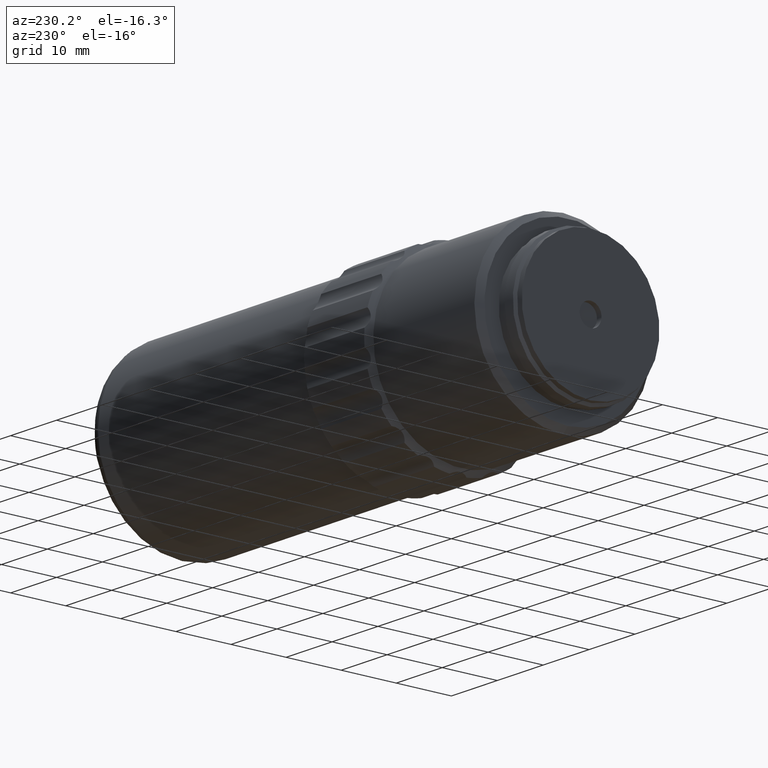
[diagram: clean part render]
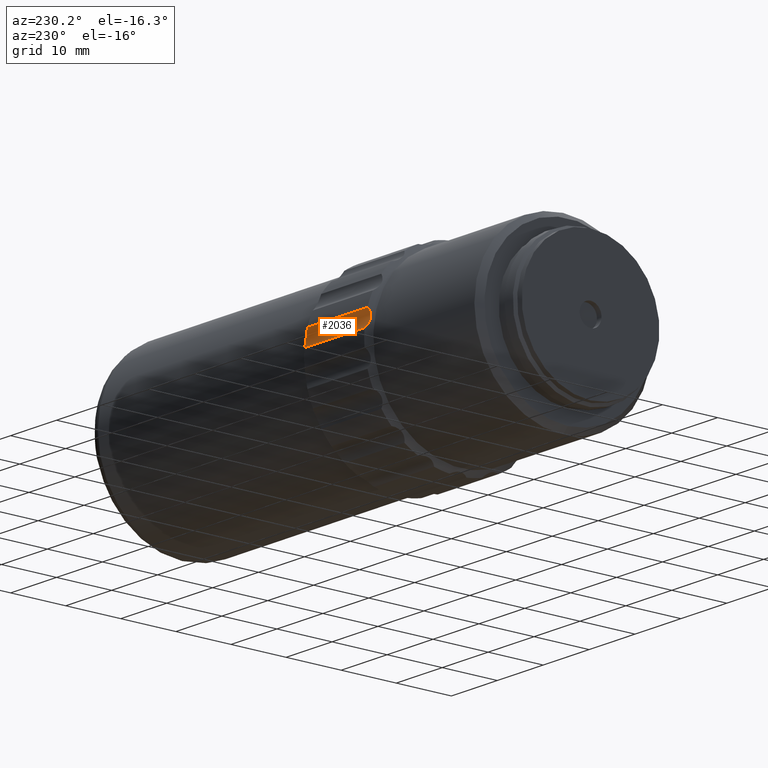
[diagram: same view with one face highlighted and labeled with its STEP entity id]
A machine part, auxiliary view. The second image highlights one B-rep face of the part: STEP entity #2036.
In plain terms, the highlighted cylindrical surface (edge-blend (fillet) strip) has radius 3 mm, axis along (-1, 0, 0).
Its self-contained STEP definition (entity closure, byte-faithful):
#52 = EDGE_CURVE ( 'NONE', #1191, #382, #1551, .T. ) ;
#90 = CARTESIAN_POINT ( 'NONE',  ( 32.85210940846929617, 62.47151406203238366, 2.186719745017569494 ) ) ;
#102 = CARTESIAN_POINT ( 'NONE',  ( 18.85967090375870825, 62.23047274774310722, 3.153385542406657915 ) ) ;
#127 = CARTESIAN_POINT ( 'NONE',  ( 19.34685803487881017, 62.96184413496550292, 1.416514203673278960 ) ) ;
#131 = CARTESIAN_POINT ( 'NONE',  ( 19.19974036611872137, 62.79852387642730349, 1.604150078087038134 ) ) ;
#153 = CARTESIAN_POINT ( 'NONE',  ( 32.59397570363886132, 62.33536472968091147, 4.230856126619375601 ) ) ;
#169 = CYLINDRICAL_SURFACE ( 'NONE', #1924, 2.999999999999999556 ) ;
#215 = EDGE_LOOP ( 'NONE', ( #2026, #720, #800, #726 ) ) ;
#283 = CARTESIAN_POINT ( 'NONE',  ( 18.85870489934783123, 62.32924995403242008, 2.588482820839966614 ) ) ;
#292 = EDGE_CURVE ( 'NONE', #382, #1490, #378, .T. ) ;
#316 = CARTESIAN_POINT ( 'NONE',  ( 32.71993598786254864, 62.27060295615641650, 3.975612932441850322 ) ) ;
#378 = LINE ( 'NONE', #1020, #1166 ) ;
#382 = VERTEX_POINT ( 'NONE', #127 ) ;
#451 = CARTESIAN_POINT ( 'NONE',  ( 32.59371544402078058, 62.79881279935864313, 1.603818139432604095 ) ) ;
#456 = EDGE_CURVE ( 'NONE', #1490, #1717, #1562, .T. ) ;
#625 = CARTESIAN_POINT ( 'NONE',  ( 19.07378008189505536, 62.65036940188183223, 1.821850393098588539 ) ) ;
#665 = CARTESIAN_POINT ( 'NONE',  ( 32.44685803487880804, 62.42466032279404686, 4.463034991433892706 ) ) ;
#675 = CARTESIAN_POINT ( 'NONE',  ( 32.94700126034474152, 62.24567731064608722, 3.004082092195003106 ) ) ;
#703 = DIRECTION ( 'NONE',  ( -1.000000000000000000, 0.000000000000000000, 0.000000000000000000 ) ) ;
#720 = ORIENTED_EDGE ( 'NONE', *, *, #292, .F. ) ;
#726 = ORIENTED_EDGE ( 'NONE', *, *, #1035, .F. ) ;
#790 = CARTESIAN_POINT ( 'NONE',  ( 32.94671223884980549, 62.29579183602519521, 2.721276841238303934 ) ) ;
#800 = ORIENTED_EDGE ( 'NONE', *, *, #52, .F. ) ;
#803 = DIRECTION ( 'NONE',  ( 0.000000000000000000, 0.000000000000000000, 1.000000000000000000 ) ) ;
#833 = LINE ( 'NONE', #980, #1396 ) ;
#904 = CARTESIAN_POINT ( 'NONE',  ( 19.34685803487881017, 62.42466032279406107, 4.463034991433929122 ) ) ;
#946 = CARTESIAN_POINT ( 'NONE',  ( 32.88806413580806520, 62.22167693136037769, 3.427813229224471847 ) ) ;
#980 = CARTESIAN_POINT ( 'NONE',  ( 25.94685803487879738, 62.42466032279404686, 4.463034991433948662 ) ) ;
#1020 = CARTESIAN_POINT ( 'NONE',  ( 53.58686043487880823, 62.96184413496550292, 1.416514203673275185 ) ) ;
#1035 = EDGE_CURVE ( 'NONE', #1717, #1191, #833, .T. ) ;
#1097 = CARTESIAN_POINT ( 'NONE',  ( 32.88671825240740532, 62.41914792436489989, 2.314480119284867854 ) ) ;
#1144 = DIRECTION ( 'NONE',  ( -1.000000000000000000, 0.000000000000000000, 0.000000000000000000 ) ) ;
#1166 = VECTOR ( 'NONE', #2028, 1000.000000000000000 ) ;
#1177 = CARTESIAN_POINT ( 'NONE',  ( 32.44685803487877251, 62.96184413496547450, 1.416514203673303385 ) ) ;
#1191 = VERTEX_POINT ( 'NONE', #1777 ) ;
#1264 = CARTESIAN_POINT ( 'NONE',  ( 19.34685803487881017, 62.96184413496550292, 1.416514203673278960 ) ) ;
#1309 = CARTESIAN_POINT ( 'NONE',  ( 32.85273454226017975, 62.22720588179112156, 3.569201001427911191 ) ) ;
#1396 = VECTOR ( 'NONE', #703, 1000.000000000000000 ) ;
#1400 = CARTESIAN_POINT ( 'NONE',  ( 18.90699781735018448, 62.22181512952326443, 3.433610011084525571 ) ) ;
#1413 = CARTESIAN_POINT ( 'NONE',  ( 19.07538957795835088, 62.27129880966106867, 3.979600334337189516 ) ) ;
#1475 = FACE_OUTER_BOUND ( 'NONE', #215, .T. ) ;
#1490 = VERTEX_POINT ( 'NONE', #1177 ) ;
#1544 = CARTESIAN_POINT ( 'NONE',  ( 32.71832649179923180, 62.65238706205303032, 1.818341456876850781 ) ) ;
#1551 = B_SPLINE_CURVE_WITH_KNOTS ( 'NONE', 3,
 ( #904, #1558, #1413, #1744, #1400, #102, #2075, #2064, #283, #1582, #2089, #625, #131, #1264 ),
 .UNSPECIFIED., .F., .F.,
 ( 4, 2, 2, 2, 2, 2, 4 ),
 ( 9.341771812940338307E-18, 0.0008570537395405528015, 0.001285580609310825679, 0.001714107479081098447, 0.002142634348851371433, 0.002571161218621644418, 0.003428214958162192558 ),
 .UNSPECIFIED. ) ;
#1558 = CARTESIAN_POINT ( 'NONE',  ( 19.20000062573679500, 62.33552269872132001, 4.231266864385911042 ) ) ;
#1562 = B_SPLINE_CURVE_WITH_KNOTS ( 'NONE', 3,
 ( #1914, #451, #1544, #90, #1097, #1756, #790, #675, #1981, #946, #1309, #316, #153, #665 ),
 .UNSPECIFIED., .F., .F.,
 ( 4, 2, 2, 2, 2, 2, 4 ),
 ( 3.903127820947815962E-18, 0.0008570537395405356711, 0.001285580609310801392, 0.001714107479081067439, 0.002142634348851333269, 0.002571161218621598882, 0.003428214958162131842 ),
 .UNSPECIFIED. ) ;
#1582 = CARTESIAN_POINT ( 'NONE',  ( 18.90565193394954946, 62.41703544440839835, 2.319880045867563467 ) ) ;
#1710 = CARTESIAN_POINT ( 'NONE',  ( 32.44685803487880804, 62.42466032279404686, 4.463034991433892706 ) ) ;
#1717 = VERTEX_POINT ( 'NONE', #1710 ) ;
#1744 = CARTESIAN_POINT ( 'NONE',  ( 18.94160666128827231, 62.22732658115023696, 3.571575765922809342 ) ) ;
#1756 = CARTESIAN_POINT ( 'NONE',  ( 32.93404516599888154, 62.33144101137909843, 2.580766064489510292 ) ) ;
#1777 = CARTESIAN_POINT ( 'NONE',  ( 19.34685803487881017, 62.42466032279406107, 4.463034991433929122 ) ) ;
#1914 = CARTESIAN_POINT ( 'NONE',  ( 32.44685803487877251, 62.96184413496547450, 1.416514203673303385 ) ) ;
#1924 = AXIS2_PLACEMENT_3D ( 'NONE', #1965, #1144, #803 ) ;
#1965 = CARTESIAN_POINT ( 'NONE',  ( 53.58686043487880823, 65.22471318373810334, 3.386139464505140140 ) ) ;
#1981 = CARTESIAN_POINT ( 'NONE',  ( 32.93501117040976567, 62.23105311343569923, 3.145384777659983033 ) ) ;
#2026 = ORIENTED_EDGE ( 'NONE', *, *, #456, .F. ) ;
#2028 = DIRECTION ( 'NONE',  ( 1.000000000000000000, -0.000000000000000000, -0.000000000000000000 ) ) ;
#2036 = ADVANCED_FACE ( 'NONE', ( #1475 ), #169, .F. ) ;
#2064 = CARTESIAN_POINT ( 'NONE',  ( 18.84671480941285893, 62.29466383950088471, 2.726265681694554743 ) ) ;
#2075 = CARTESIAN_POINT ( 'NONE',  ( 18.84700383090778786, 62.24503099672836726, 3.009155866290937453 ) ) ;
#2089 = CARTESIAN_POINT ( 'NONE',  ( 18.94098152749741359, 62.47058842444241122, 2.188910012077404321 ) ) ;